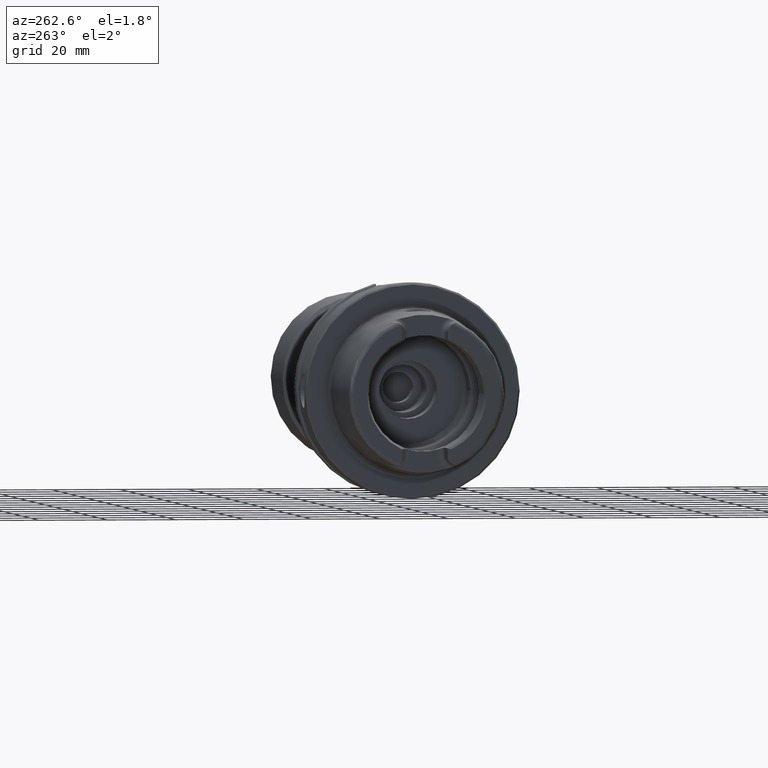
[diagram: clean part render]
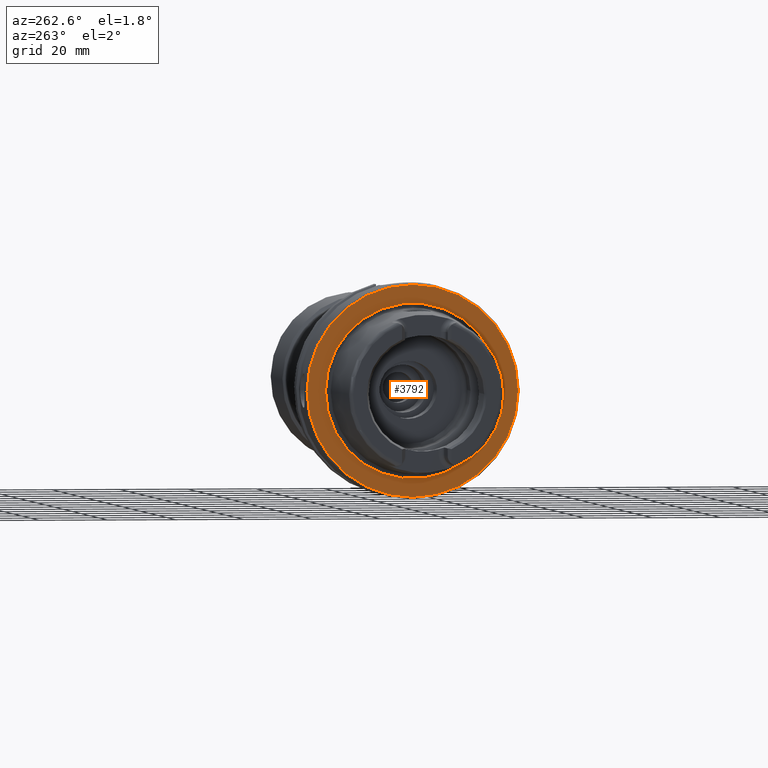
[diagram: same view with one face highlighted and labeled with its STEP entity id]
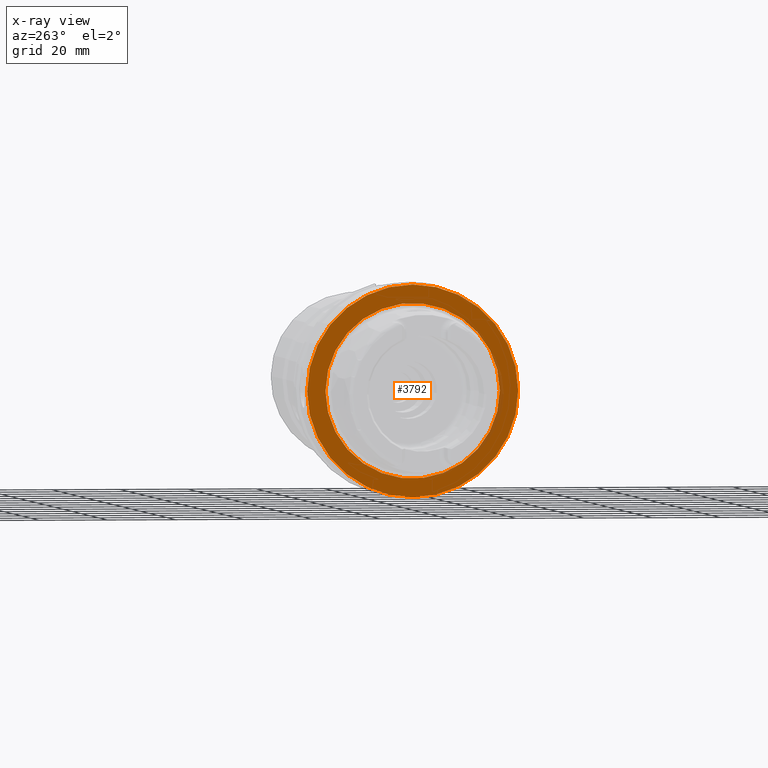
[diagram: x-ray of the same camera — body ghosted, the highlighted face saturated]
A machine part, auxiliary view. The second image highlights one B-rep face of the part: STEP entity #3792.
The next image is the same camera in x-ray: the body ghosted, the highlighted face saturated — about 4% of this face is hidden behind the body in this view.
In plain terms, the highlighted planar face has unit normal (-1, -0, 0).
Its self-contained STEP definition (entity closure, byte-faithful):
#129=FACE_BOUND('',#1091,.T.);
#705=PLANE('',#4330);
#870=FACE_OUTER_BOUND('',#1090,.T.);
#1090=EDGE_LOOP('',(#3158,#3159));
#1091=EDGE_LOOP('',(#3160,#3161));
#1425=CIRCLE('',#4328,25.5879092835167);
#1426=CIRCLE('',#4329,25.5879092835167);
#1427=CIRCLE('',#4331,31.);
#1428=CIRCLE('',#4332,31.);
#1754=VERTEX_POINT('',#7241);
#1755=VERTEX_POINT('',#7243);
#1756=VERTEX_POINT('',#7247);
#1757=VERTEX_POINT('',#7248);
#2254=EDGE_CURVE('',#1755,#1754,#1425,.T.);
#2255=EDGE_CURVE('',#1754,#1755,#1426,.T.);
#2256=EDGE_CURVE('',#1756,#1757,#1427,.T.);
#2257=EDGE_CURVE('',#1757,#1756,#1428,.T.);
#3158=ORIENTED_EDGE('',*,*,#2256,.F.);
#3159=ORIENTED_EDGE('',*,*,#2257,.F.);
#3160=ORIENTED_EDGE('',*,*,#2254,.T.);
#3161=ORIENTED_EDGE('',*,*,#2255,.T.);
#3792=ADVANCED_FACE('',(#870,#129),#705,.T.);
#4328=AXIS2_PLACEMENT_3D('',#7244,#5180,#5181);
#4329=AXIS2_PLACEMENT_3D('',#7245,#5182,#5183);
#4330=AXIS2_PLACEMENT_3D('',#7246,#5184,#5185);
#4331=AXIS2_PLACEMENT_3D('',#7249,#5186,#5187);
#4332=AXIS2_PLACEMENT_3D('',#7250,#5188,#5189);
#5180=DIRECTION('center_axis',(1.,0.,0.));
#5181=DIRECTION('ref_axis',(0.,0.,-1.));
#5182=DIRECTION('center_axis',(1.,0.,0.));
#5183=DIRECTION('ref_axis',(0.,0.,-1.));
#5184=DIRECTION('center_axis',(-1.,0.,0.));
#5185=DIRECTION('ref_axis',(0.,0.,1.));
#5186=DIRECTION('center_axis',(1.,0.,0.));
#5187=DIRECTION('ref_axis',(0.,0.,-1.));
#5188=DIRECTION('center_axis',(1.,0.,0.));
#5189=DIRECTION('ref_axis',(0.,0.,-1.));
#7241=CARTESIAN_POINT('',(-9.0205620750794E-16,-25.5879092835167,-3.13361512009315E-15));
#7243=CARTESIAN_POINT('',(0.,25.5879092835167,0.));
#7244=CARTESIAN_POINT('Origin',(0.,0.,0.));
#7245=CARTESIAN_POINT('Origin',(0.,0.,0.));
#7246=CARTESIAN_POINT('Origin',(0.,31.,0.));
#7247=CARTESIAN_POINT('',(0.,31.,0.));
#7248=CARTESIAN_POINT('',(-1.04083408558608E-15,-31.,-3.7964050773568E-15));
#7249=CARTESIAN_POINT('Origin',(0.,0.,0.));
#7250=CARTESIAN_POINT('Origin',(0.,0.,0.));